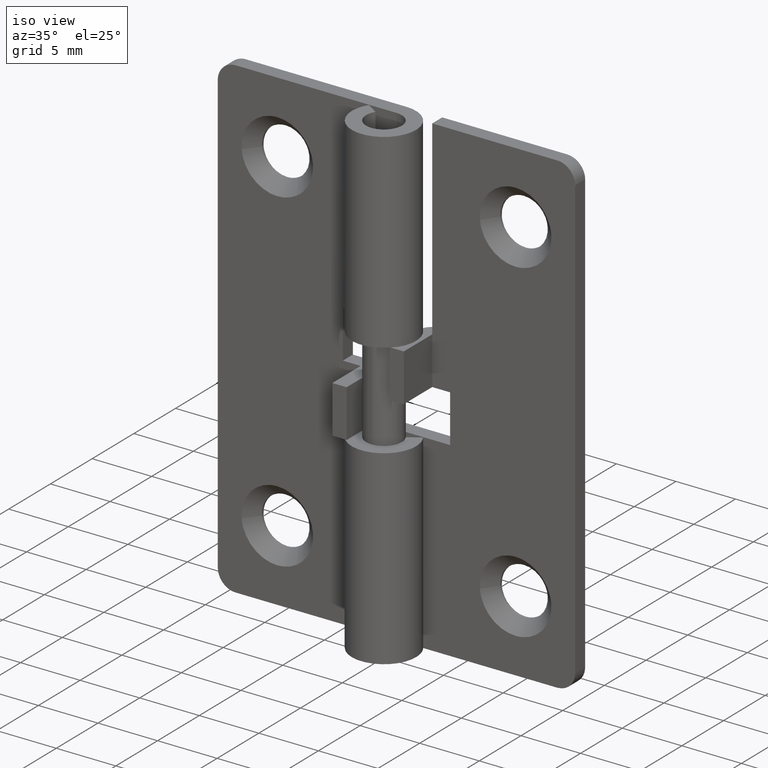
[diagram: clean part render]
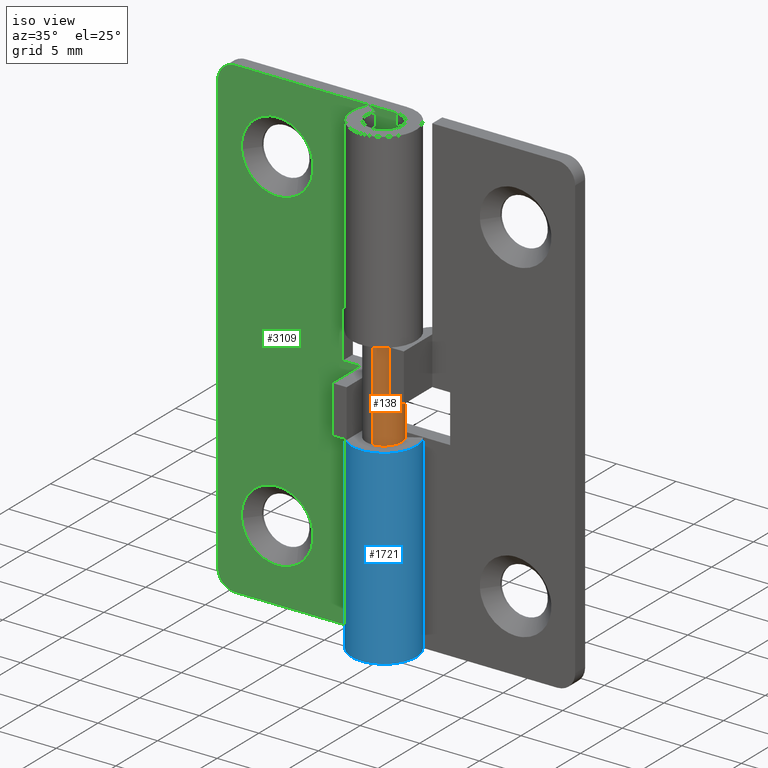
[diagram: same view with three faces highlighted in distinct colors, each labeled with its STEP entity id]
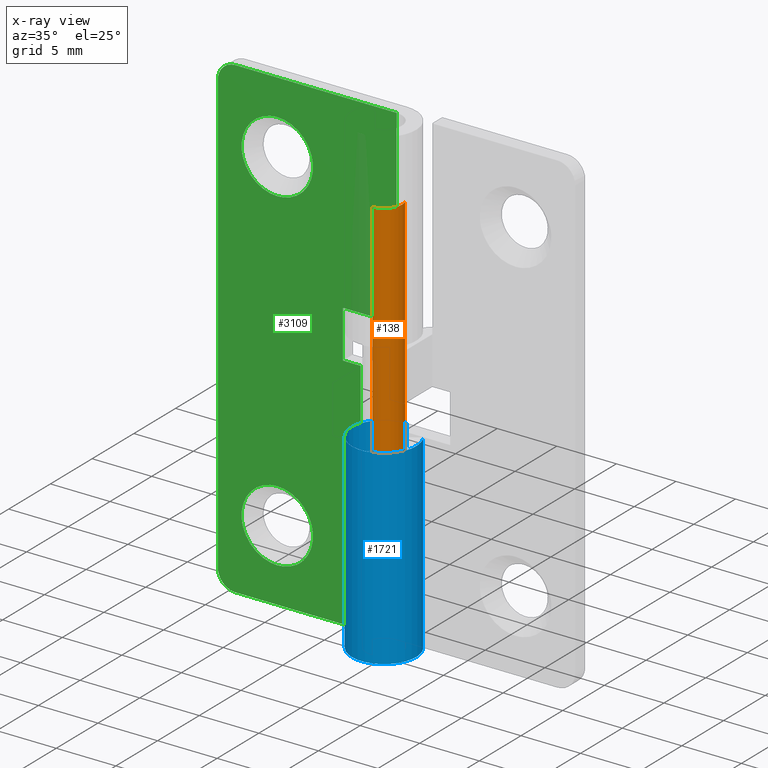
[diagram: x-ray of the same camera — body ghosted, the three highlighted faces saturated]
A machine part, iso view with three faces highlighted in distinct colors.
The next image is the same camera in x-ray (body ghosted, the three faces saturated) — at least one of them is partly hidden behind the body in this view.
Their STEP definitions:

[orange] entity #138 — the highlighted face is a freeform B-spline surface patch.
#44=CARTESIAN_POINT('',(1.404243452472438,0.527437510126623,34.849991800000005));
#45=CARTESIAN_POINT('',(1.483475697968401,0.316490507256684,34.849991800000012));
#46=CARTESIAN_POINT('',(1.497232141676848,0.091574640758477,34.849991800000012));
#47=CARTESIAN_POINT('',(1.588806782435325,-1.405657500918370,34.849991800000005));
#48=CARTESIAN_POINT('',(0.091574640758477,-1.497232141676848,34.849991800000012));
#49=CARTESIAN_POINT('',(1.404243452472438,0.527437510126623,-0.871249794999997));
#50=CARTESIAN_POINT('',(1.483475697968401,0.316490507256684,-0.871249794999997));
#51=CARTESIAN_POINT('',(1.497232141676848,0.091574640758477,-0.871249794999997));
#52=CARTESIAN_POINT('',(1.588806782435325,-1.405657500918370,-0.871249794999997));
#53=CARTESIAN_POINT('',(0.091574640758477,-1.497232141676848,-0.871249794999997));
#61=(BOUNDED_SURFACE()B_SPLINE_SURFACE(2,1,((#44,#49),(#45,#50),(#46,#51),(#47,#52),(#48,#53)),.UNSPECIFIED.,.F.,.F.,.U.)B_SPLINE_SURFACE_WITH_KNOTS((3,2,3),(2,2),(4.398229715025710,4.712388980384690,6.283185307179586),(0.0,35.721241595000002),.UNSPECIFIED.)GEOMETRIC_REPRESENTATION_ITEM()RATIONAL_B_SPLINE_SURFACE(((0.906274169979695,0.906274169979695),(0.941421356237309,0.941421356237309),(1.0,1.0),(0.707106781186548,0.707106781186548),(1.0,1.0)))REPRESENTATION_ITEM('')SURFACE());
#62=CARTESIAN_POINT('',(1.404243452460159,0.527437510159315,33.999991999999999));
#63=VERTEX_POINT('',#62);
#64=CARTESIAN_POINT('',(1.500030000000095,0.0,33.999991999999999));
#65=VERTEX_POINT('',#64);
#66=CARTESIAN_POINT('',(1.404243452460159,0.527437510159315,33.999992000000006));
#67=CARTESIAN_POINT('',(1.500030000000095,0.272416527357814,33.999992000000006));
#68=CARTESIAN_POINT('',(1.500030000000095,0.0,33.999991999999999));
#76=(BOUNDED_CURVE()B_SPLINE_CURVE(2,(#66,#67,#68),.UNSPECIFIED.,.F.,.U.)B_SPLINE_CURVE_WITH_KNOTS((3,3),(0.440284170891555,0.500000000000000),.UNSPECIFIED.)CURVE()GEOMETRIC_REPRESENTATION_ITEM()RATIONAL_B_SPLINE_CURVE((0.893499554626766,0.930038554393254,1.0))REPRESENTATION_ITEM(''));
#77=EDGE_CURVE('',#63,#65,#76,.T.);
#78=ORIENTED_EDGE('',*,*,#77,.T.);
#79=CARTESIAN_POINT('',(0.091574640778391,-1.497232141677437,33.999991999992787));
#80=VERTEX_POINT('',#79);
#81=CARTESIAN_POINT('',(1.500030000000095,0.0,33.999991999999999));
#82=CARTESIAN_POINT('',(1.500030000000096,-1.411087321465840,33.999991999999985));
#83=CARTESIAN_POINT('',(0.091574640778391,-1.497232141677437,33.999991999992787));
#91=(BOUNDED_CURVE()B_SPLINE_CURVE(2,(#81,#82,#83),.UNSPECIFIED.,.F.,.U.)B_SPLINE_CURVE_WITH_KNOTS((3,3),(0.500000000000000,0.739332962232839),.UNSPECIFIED.)CURVE()GEOMETRIC_REPRESENTATION_ITEM()RATIONAL_B_SPLINE_CURVE((1.0,0.719603993293862,0.976072041653635))REPRESENTATION_ITEM(''));
#92=EDGE_CURVE('',#65,#80,#91,.T.);
#93=ORIENTED_EDGE('',*,*,#92,.T.);
#94=CARTESIAN_POINT('',(0.091574640779112,-1.497232141675586,-1.665335E-016));
#95=VERTEX_POINT('',#94);
#96=CARTESIAN_POINT('',(0.091574640778391,-1.497232141677437,33.999991999992787));
#97=CARTESIAN_POINT('',(0.091574640779112,-1.497232141675586,-1.665335E-016));
#98=QUASI_UNIFORM_CURVE('',1,(#96,#97),.UNSPECIFIED.,.F.,.U.);
#99=EDGE_CURVE('',#80,#95,#98,.T.);
#100=ORIENTED_EDGE('',*,*,#99,.T.);
#101=CARTESIAN_POINT('',(1.500030000000095,0.0,0.0));
#102=VERTEX_POINT('',#101);
#103=CARTESIAN_POINT('',(1.500030000000095,0.0,0.0));
#104=CARTESIAN_POINT('',(1.500030000000096,-1.411087321501679,0.0));
#105=CARTESIAN_POINT('',(0.091574640779112,-1.497232141675586,-1.665335E-016));
#113=(BOUNDED_CURVE()B_SPLINE_CURVE(2,(#103,#104,#105),.UNSPECIFIED.,.F.,.U.)B_SPLINE_CURVE_WITH_KNOTS((3,3),(0.500000000000000,0.739332962237213),.UNSPECIFIED.)CURVE()GEOMETRIC_REPRESENTATION_ITEM()RATIONAL_B_SPLINE_CURVE((1.0,0.719603993288737,0.976072041663010))REPRESENTATION_ITEM(''));
#114=EDGE_CURVE('',#102,#95,#113,.T.);
#115=ORIENTED_EDGE('',*,*,#114,.F.);
#116=CARTESIAN_POINT('',(1.404243452460401,0.527437510158670,-1.225041E-016));
#117=VERTEX_POINT('',#116);
#118=CARTESIAN_POINT('',(1.404243452460402,0.527437510158670,-1.225041E-016));
#119=CARTESIAN_POINT('',(1.500030000000095,0.272416527357102,0.0));
#120=CARTESIAN_POINT('',(1.500030000000095,0.0,0.0));
#128=(BOUNDED_CURVE()B_SPLINE_CURVE(2,(#118,#119,#120),.UNSPECIFIED.,.F.,.U.)B_SPLINE_CURVE_WITH_KNOTS((3,3),(0.440284170891700,0.500000000000000),.UNSPECIFIED.)CURVE()GEOMETRIC_REPRESENTATION_ITEM()RATIONAL_B_SPLINE_CURVE((0.893499554626943,0.930038554393424,1.0))REPRESENTATION_ITEM(''));
#129=EDGE_CURVE('',#117,#102,#128,.T.);
#130=ORIENTED_EDGE('',*,*,#129,.F.);
#131=CARTESIAN_POINT('',(1.404243452460159,0.527437510159315,33.999991999999999));
#132=CARTESIAN_POINT('',(1.404243452460401,0.527437510158670,-1.225041E-016));
#133=QUASI_UNIFORM_CURVE('',1,(#131,#132),.UNSPECIFIED.,.F.,.U.);
#134=EDGE_CURVE('',#63,#117,#133,.T.);
#135=ORIENTED_EDGE('',*,*,#134,.F.);
#136=EDGE_LOOP('',(#78,#93,#100,#115,#130,#135));
#137=FACE_OUTER_BOUND('',#136,.T.);
#138=ADVANCED_FACE('',(#137),#61,.T.);

[blue] entity #1721 — the highlighted face is a freeform B-spline surface patch.
#1347=CARTESIAN_POINT('',(0.0,2.699997000000000,16.0));
#1348=VERTEX_POINT('',#1347);
#1349=CARTESIAN_POINT('',(2.277608394786005,1.450000000000114,16.0));
#1350=VERTEX_POINT('',#1349);
#1351=CARTESIAN_POINT('',(0.0,2.699997000000000,16.0));
#1352=CARTESIAN_POINT('',(-2.095109977493359,2.699994879182186,16.000000000000004));
#1353=CARTESIAN_POINT('',(-2.615415091760214,0.670520571077475,16.0));
#1354=CARTESIAN_POINT('',(-3.135720206027071,-1.358953737027236,16.000000000000004));
#1355=CARTESIAN_POINT('',(-1.299038105676602,-2.366961575708954,16.0));
#1356=CARTESIAN_POINT('',(0.537643994673867,-3.374969414390670,16.000000000000004));
#1357=CARTESIAN_POINT('',(1.970202022019861,-1.846157734330594,16.0));
#1358=CARTESIAN_POINT('',(3.402760049365857,-0.317346054270515,16.000000000000004));
#1359=CARTESIAN_POINT('',(2.277608394786005,1.450000000000114,16.0));
#1367=(BOUNDED_CURVE()B_SPLINE_CURVE(2,(#1351,#1352,#1353,#1354,#1355,#1356,#1357,#1358,#1359),.UNSPECIFIED.,.F.,.U.)B_SPLINE_CURVE_WITH_KNOTS((3,2,2,2,3),(0.0,0.250000000000000,0.500000000000000,0.750000000000000,1.0),.UNSPECIFIED.)CURVE()GEOMETRIC_REPRESENTATION_ITEM()RATIONAL_B_SPLINE_CURVE((1.0,0.790045133626190,1.0,0.790045133626190,1.0,0.790045133626190,1.0,0.790045133626190,1.0))REPRESENTATION_ITEM(''));
#1368=EDGE_CURVE('',#1348,#1350,#1367,.T.);
#1404=CARTESIAN_POINT('',(0.004024921167902,2.699997000000000,16.0));
#1405=VERTEX_POINT('',#1404);
#1411=CARTESIAN_POINT('',(0.004024921167902,2.699997000000000,16.0));
#1412=CARTESIAN_POINT('',(0.0,2.699997000000000,16.0));
#1413=QUASI_UNIFORM_CURVE('',1,(#1411,#1412),.UNSPECIFIED.,.F.,.U.);
#1414=EDGE_CURVE('',#1405,#1348,#1413,.T.);
#1570=CARTESIAN_POINT('',(0.004024921167902,2.699997000000110,-0.000038000000036));
#1571=VERTEX_POINT('',#1570);
#1606=CARTESIAN_POINT('',(2.277608394786005,1.450000000000114,-0.000038000000036));
#1607=VERTEX_POINT('',#1606);
#1613=CARTESIAN_POINT('',(0.004024921167904,2.699997000000110,-0.000038000000036));
#1614=CARTESIAN_POINT('',(-2.091888897382458,2.703121406395519,-0.000038000000036));
#1615=CARTESIAN_POINT('',(-2.614663787384020,0.673448794595887,-0.000038000000036));
#1616=CARTESIAN_POINT('',(-3.137438677385583,-1.356223817203747,-0.000038000000036));
#1617=CARTESIAN_POINT('',(-1.300801972676840,-2.365991172401123,-0.000038000000036));
#1618=CARTESIAN_POINT('',(0.535834732031903,-3.375758527598499,-0.000038000000036));
#1619=CARTESIAN_POINT('',(1.969513862233385,-1.846893377125636,-0.000038000000036));
#1620=CARTESIAN_POINT('',(3.403192992434866,-0.318028226652773,-0.000038000000036));
#1621=CARTESIAN_POINT('',(2.277608394786006,1.450000000000109,-0.000038000000036));
#1629=(BOUNDED_CURVE()B_SPLINE_CURVE(2,(#1613,#1614,#1615,#1616,#1617,#1618,#1619,#1620,#1621),.UNSPECIFIED.,.F.,.U.)B_SPLINE_CURVE_WITH_KNOTS((3,2,2,2,3),(0.0,0.250000000000000,0.500000000000000,0.750000000000000,1.0),.UNSPECIFIED.)CURVE()GEOMETRIC_REPRESENTATION_ITEM()RATIONAL_B_SPLINE_CURVE((1.0,0.789930885025042,1.0,0.789930885025042,1.0,0.789930885025042,1.0,0.789930885025042,1.0))REPRESENTATION_ITEM(''));
#1630=EDGE_CURVE('',#1571,#1607,#1629,.T.);
#1678=CARTESIAN_POINT('',(2.277608394786005,1.450000000000114,-0.000038000000036));
#1679=CARTESIAN_POINT('',(2.277608394786005,1.450000000000114,16.0));
#1680=QUASI_UNIFORM_CURVE('',1,(#1678,#1679),.UNSPECIFIED.,.F.,.U.);
#1681=EDGE_CURVE('',#1607,#1350,#1680,.T.);
#1688=CARTESIAN_POINT('',(2.227417977353597,1.525978097536792,-0.400038950000037));
#1689=CARTESIAN_POINT('',(2.227417977353597,1.525978097536792,16.410000973750002));
#1690=CARTESIAN_POINT('',(4.145835370333900,-1.274270081706238,-0.400038950000036));
#1691=CARTESIAN_POINT('',(4.145835370333900,-1.274270081706238,16.410000973749995));
#1692=CARTESIAN_POINT('',(0.985807355287602,-2.513599780844369,-0.400038950000037));
#1693=CARTESIAN_POINT('',(0.985807355287602,-2.513599780844369,16.410000973750002));
#1694=CARTESIAN_POINT('',(-2.174220659758694,-3.752929479982500,-0.400038950000036));
#1695=CARTESIAN_POINT('',(-2.174220659758694,-3.752929479982500,16.410000973749995));
#1696=CARTESIAN_POINT('',(-2.670934785257364,-0.395104255737893,-0.400038950000037));
#1697=CARTESIAN_POINT('',(-2.670934785257364,-0.395104255737893,16.410000973750002));
#1698=CARTESIAN_POINT('',(-3.167648910756034,2.962720968506714,-0.400038950000036));
#1699=CARTESIAN_POINT('',(-3.167648910756034,2.962720968506714,16.410000973749995));
#1700=CARTESIAN_POINT('',(0.215851836767097,2.691358018652344,-0.400038950000037));
#1701=CARTESIAN_POINT('',(0.215851836767097,2.691358018652344,16.410000973750002));
#1709=(BOUNDED_SURFACE()B_SPLINE_SURFACE(1,2,((#1688,#1690,#1692,#1694,#1696,#1698,#1700),(#1689,#1691,#1693,#1695,#1697,#1699,#1701)),.UNSPECIFIED.,.F.,.F.,.U.)B_SPLINE_SURFACE_WITH_KNOTS((2,2),(3,2,2,3),(0.0,16.810039923750040),(0.0,5.209301600829763,10.418603201659529,15.627904802489290),.UNSPECIFIED.)GEOMETRIC_REPRESENTATION_ITEM()RATIONAL_B_SPLINE_SURFACE(((1.0,0.622514636637620,1.0,0.622514636637620,1.0,0.622514636637620,1.0),(1.0,0.622514636637620,1.0,0.622514636637620,1.0,0.622514636637620,1.0)))REPRESENTATION_ITEM('')SURFACE());
#1710=ORIENTED_EDGE('',*,*,#1414,.F.);
#1711=CARTESIAN_POINT('',(0.004024921167902,2.699997000000110,-0.000038000000036));
#1712=CARTESIAN_POINT('',(0.004024921167902,2.699997000000000,16.0));
#1713=QUASI_UNIFORM_CURVE('',1,(#1711,#1712),.UNSPECIFIED.,.F.,.U.);
#1714=EDGE_CURVE('',#1571,#1405,#1713,.T.);
#1715=ORIENTED_EDGE('',*,*,#1714,.F.);
#1716=ORIENTED_EDGE('',*,*,#1630,.T.);
#1717=ORIENTED_EDGE('',*,*,#1681,.T.);
#1718=ORIENTED_EDGE('',*,*,#1368,.F.);
#1719=EDGE_LOOP('',(#1710,#1715,#1716,#1717,#1718));
#1720=FACE_OUTER_BOUND('',#1719,.T.);
#1721=ADVANCED_FACE('',(#1720),#1709,.T.);

[green] entity #3109 — the highlighted face is a freeform B-spline surface patch.
#1886=CARTESIAN_POINT('',(-8.386439619589588,1.499999999995708,31.470864853447509));
#1887=VERTEX_POINT('',#1886);
#1893=CARTESIAN_POINT('',(-9.999991999999999,1.500000000000030,36.999985000000009));
#1894=VERTEX_POINT('',#1893);
#1895=CARTESIAN_POINT('',(-9.999991999999999,1.500000000000030,36.999985000000009));
#1896=CARTESIAN_POINT('',(-6.999991999999999,1.500000000000031,36.999985000000009));
#1897=CARTESIAN_POINT('',(-6.999991999999999,1.500000000000030,33.999985000000002));
#1898=CARTESIAN_POINT('',(-6.999991999999998,1.500000000000030,32.355404032063070));
#1899=CARTESIAN_POINT('',(-8.386439619589588,1.499999999995709,31.470864853447512));
#1907=(BOUNDED_CURVE()B_SPLINE_CURVE(2,(#1895,#1896,#1897,#1898,#1899),.UNSPECIFIED.,.F.,.U.)B_SPLINE_CURVE_WITH_KNOTS((3,2,3),(0.0,0.250000000000000,0.407950112619180),.UNSPECIFIED.)CURVE()GEOMETRIC_REPRESENTATION_ITEM()RATIONAL_B_SPLINE_CURVE((1.0,0.707106781186548,1.0,0.814949932412084,0.863729296949754))REPRESENTATION_ITEM(''));
#1908=EDGE_CURVE('',#1894,#1887,#1907,.T.);
#1910=CARTESIAN_POINT('',(-12.990744001211580,1.499999999969424,33.764607712581572));
#1911=VERTEX_POINT('',#1910);
#1912=CARTESIAN_POINT('',(-12.990744001211585,1.499999999969424,33.764607712581579));
#1913=CARTESIAN_POINT('',(-12.999992000000001,1.500000000000030,33.882114678743413));
#1914=CARTESIAN_POINT('',(-12.999992000000001,1.500000000000030,33.999985000000002));
#1915=CARTESIAN_POINT('',(-12.999991999999999,1.500000000000031,36.999985000000009));
#1916=CARTESIAN_POINT('',(-9.999991999999999,1.500000000000030,36.999985000000009));
#1924=(BOUNDED_CURVE()B_SPLINE_CURVE(2,(#1912,#1913,#1914,#1915,#1916),.UNSPECIFIED.,.F.,.U.)B_SPLINE_CURVE_WITH_KNOTS((3,2,3),(0.736331300606114,0.750000000000000,1.0),.UNSPECIFIED.)CURVE()GEOMETRIC_REPRESENTATION_ITEM()RATIONAL_B_SPLINE_CURVE((0.969723356116192,0.983986122550125,1.0,0.707106781186548,1.0))REPRESENTATION_ITEM(''));
#1925=EDGE_CURVE('',#1911,#1894,#1924,.T.);
#2029=CARTESIAN_POINT('',(-9.999991999999999,1.500000000000030,30.999985000000009));
#2030=VERTEX_POINT('',#2029);
#2031=CARTESIAN_POINT('',(-9.999991999999999,1.500000000000030,30.999985000000009));
#2032=CARTESIAN_POINT('',(-12.773163474542120,1.500000000000030,30.999985000000002));
#2033=CARTESIAN_POINT('',(-12.990744001211583,1.499999999969424,33.764607712581572));
#2041=(BOUNDED_CURVE()B_SPLINE_CURVE(2,(#2031,#2032,#2033),.UNSPECIFIED.,.F.,.U.)B_SPLINE_CURVE_WITH_KNOTS((3,3),(0.500000000000000,0.736331300606114),.UNSPECIFIED.)CURVE()GEOMETRIC_REPRESENTATION_ITEM()RATIONAL_B_SPLINE_CURVE((1.0,0.723120658636423,0.969723356116193))REPRESENTATION_ITEM(''));
#2042=EDGE_CURVE('',#2030,#1911,#2041,.T.);
#2044=CARTESIAN_POINT('',(-8.386439619589588,1.499999999995708,31.470864853447502));
#2045=CARTESIAN_POINT('',(-9.124507833772762,1.500000000000030,30.999985000000006));
#2046=CARTESIAN_POINT('',(-9.999991999999999,1.500000000000030,30.999985000000009));
#2054=(BOUNDED_CURVE()B_SPLINE_CURVE(2,(#2044,#2045,#2046),.UNSPECIFIED.,.F.,.U.)B_SPLINE_CURVE_WITH_KNOTS((3,3),(0.407950112619180,0.500000000000000),.UNSPECIFIED.)CURVE()GEOMETRIC_REPRESENTATION_ITEM()RATIONAL_B_SPLINE_CURVE((0.863729296949754,0.892156848774463,1.0))REPRESENTATION_ITEM(''));
#2055=EDGE_CURVE('',#1887,#2030,#2054,.T.);
#2230=CARTESIAN_POINT('',(-8.386439619589588,1.499999999995708,3.470864853447501));
#2231=VERTEX_POINT('',#2230);
#2237=CARTESIAN_POINT('',(-9.999991999999999,1.500000000000030,8.999985000000001));
#2238=VERTEX_POINT('',#2237);
#2239=CARTESIAN_POINT('',(-9.999991999999999,1.500000000000030,8.999985000000001));
#2240=CARTESIAN_POINT('',(-6.999991999999999,1.500000000000031,8.999985000000001));
#2241=CARTESIAN_POINT('',(-6.999991999999999,1.500000000000030,5.999985000000001));
#2242=CARTESIAN_POINT('',(-6.999991999999999,1.500000000000030,4.355404032063055));
#2243=CARTESIAN_POINT('',(-8.386439619589588,1.499999999995708,3.470864853447502));
#2251=(BOUNDED_CURVE()B_SPLINE_CURVE(2,(#2239,#2240,#2241,#2242,#2243),.UNSPECIFIED.,.F.,.U.)B_SPLINE_CURVE_WITH_KNOTS((3,2,3),(0.0,0.250000000000000,0.407950112619180),.UNSPECIFIED.)CURVE()GEOMETRIC_REPRESENTATION_ITEM()RATIONAL_B_SPLINE_CURVE((1.0,0.707106781186548,1.0,0.814949932412084,0.863729296949754))REPRESENTATION_ITEM(''));
#2252=EDGE_CURVE('',#2238,#2231,#2251,.T.);
#2254=CARTESIAN_POINT('',(-12.990744001211580,1.499999999969424,5.764607712581565));
#2255=VERTEX_POINT('',#2254);
#2256=CARTESIAN_POINT('',(-12.990744001211576,1.499999999969424,5.764607712581565));
#2257=CARTESIAN_POINT('',(-12.999991999999995,1.500000000000030,5.882114678743412));
#2258=CARTESIAN_POINT('',(-12.999992000000001,1.500000000000030,5.999985000000001));
#2259=CARTESIAN_POINT('',(-12.999991999999999,1.500000000000031,8.999985000000001));
#2260=CARTESIAN_POINT('',(-9.999991999999999,1.500000000000030,8.999985000000001));
#2268=(BOUNDED_CURVE()B_SPLINE_CURVE(2,(#2256,#2257,#2258,#2259,#2260),.UNSPECIFIED.,.F.,.U.)B_SPLINE_CURVE_WITH_KNOTS((3,2,3),(0.736331300606114,0.750000000000000,1.0),.UNSPECIFIED.)CURVE()GEOMETRIC_REPRESENTATION_ITEM()RATIONAL_B_SPLINE_CURVE((0.969723356116193,0.983986122550125,1.0,0.707106781186548,1.0))REPRESENTATION_ITEM(''));
#2269=EDGE_CURVE('',#2255,#2238,#2268,.T.);
#2373=CARTESIAN_POINT('',(-9.999991999999999,1.500000000000030,2.999985000000000));
#2374=VERTEX_POINT('',#2373);
#2375=CARTESIAN_POINT('',(-9.999991999999999,1.500000000000030,2.999985000000000));
#2376=CARTESIAN_POINT('',(-12.773163474542120,1.500000000000030,2.999984999999999));
#2377=CARTESIAN_POINT('',(-12.990744001211583,1.499999999969424,5.764607712581565));
#2385=(BOUNDED_CURVE()B_SPLINE_CURVE(2,(#2375,#2376,#2377),.UNSPECIFIED.,.F.,.U.)B_SPLINE_CURVE_WITH_KNOTS((3,3),(0.500000000000000,0.736331300606114),.UNSPECIFIED.)CURVE()GEOMETRIC_REPRESENTATION_ITEM()RATIONAL_B_SPLINE_CURVE((1.0,0.723120658636423,0.969723356116193))REPRESENTATION_ITEM(''));
#2386=EDGE_CURVE('',#2374,#2255,#2385,.T.);
#2388=CARTESIAN_POINT('',(-8.386439619589588,1.499999999995708,3.470864853447502));
#2389=CARTESIAN_POINT('',(-9.124507833772762,1.500000000000030,2.999985000000000));
#2390=CARTESIAN_POINT('',(-9.999991999999999,1.500000000000030,2.999985000000000));
#2398=(BOUNDED_CURVE()B_SPLINE_CURVE(2,(#2388,#2389,#2390),.UNSPECIFIED.,.F.,.U.)B_SPLINE_CURVE_WITH_KNOTS((3,3),(0.407950112619180,0.500000000000000),.UNSPECIFIED.)CURVE()GEOMETRIC_REPRESENTATION_ITEM()RATIONAL_B_SPLINE_CURVE((0.863729296949754,0.892156848774464,1.0))REPRESENTATION_ITEM(''));
#2399=EDGE_CURVE('',#2231,#2374,#2398,.T.);
#2635=CARTESIAN_POINT('',(-3.0,1.500000000000055,16.0));
#2636=VERTEX_POINT('',#2635);
#2678=CARTESIAN_POINT('',(-3.0,1.500000000000055,19.999962000000000));
#2679=VERTEX_POINT('',#2678);
#2685=CARTESIAN_POINT('',(-3.0,1.500000000000055,19.999962000000000));
#2686=CARTESIAN_POINT('',(-3.0,1.500000000000055,16.0));
#2687=QUASI_UNIFORM_CURVE('',1,(#2685,#2686),.UNSPECIFIED.,.F.,.U.);
#2688=EDGE_CURVE('',#2679,#2636,#2687,.T.);
#2709=CARTESIAN_POINT('',(-4.500000000000000,1.500000000000055,19.999962000000000));
#2710=VERTEX_POINT('',#2709);
#2716=CARTESIAN_POINT('',(-4.500000000000000,1.500000000000055,19.999962000000000));
#2717=CARTESIAN_POINT('',(-3.0,1.500000000000055,19.999962000000000));
#2718=QUASI_UNIFORM_CURVE('',1,(#2716,#2717),.UNSPECIFIED.,.F.,.U.);
#2719=EDGE_CURVE('',#2710,#2679,#2718,.T.);
#2739=CARTESIAN_POINT('',(-3.0,1.500000000000000,0.0));
#2740=VERTEX_POINT('',#2739);
#2741=CARTESIAN_POINT('',(-3.0,1.500000000000055,16.0));
#2742=CARTESIAN_POINT('',(-3.0,1.500000000000000,0.0));
#2743=QUASI_UNIFORM_CURVE('',1,(#2741,#2742),.UNSPECIFIED.,.F.,.U.);
#2744=EDGE_CURVE('',#2636,#2740,#2743,.T.);
#2789=CARTESIAN_POINT('',(9.184352E-017,1.500000000000000,23.999962000000000));
#2790=VERTEX_POINT('',#2789);
#2810=CARTESIAN_POINT('',(-4.500000000000000,1.500000000000055,23.999962000000000));
#2811=VERTEX_POINT('',#2810);
#2812=CARTESIAN_POINT('',(9.184352E-017,1.500000000000000,23.999962000000000));
#2813=CARTESIAN_POINT('',(-4.500000000000000,1.500000000000055,23.999962000000000));
#2814=QUASI_UNIFORM_CURVE('',1,(#2812,#2813),.UNSPECIFIED.,.F.,.U.);
#2815=EDGE_CURVE('',#2790,#2811,#2814,.T.);
#2844=CARTESIAN_POINT('',(-4.500000000000000,1.500000000000055,23.999962000000000));
#2845=CARTESIAN_POINT('',(-4.500000000000000,1.500000000000055,19.999962000000000));
#2846=QUASI_UNIFORM_CURVE('',1,(#2844,#2845),.UNSPECIFIED.,.F.,.U.);
#2847=EDGE_CURVE('',#2811,#2710,#2846,.T.);
#2873=CARTESIAN_POINT('',(-13.499992000000001,1.500000000000000,40.0));
#2874=VERTEX_POINT('',#2873);
#2875=CARTESIAN_POINT('',(-14.999992000000001,1.500000000000000,38.500000000000000));
#2876=VERTEX_POINT('',#2875);
#2877=CARTESIAN_POINT('',(-13.499992000000001,1.500000000000000,40.0));
#2878=CARTESIAN_POINT('',(-14.999991999999995,1.500000000000000,39.999999999999993));
#2879=CARTESIAN_POINT('',(-14.999992000000001,1.500000000000000,38.500000000000000));
#2887=(BOUNDED_CURVE()B_SPLINE_CURVE(2,(#2877,#2878,#2879),.UNSPECIFIED.,.F.,.U.)CURVE()GEOMETRIC_REPRESENTATION_ITEM()QUASI_UNIFORM_CURVE()RATIONAL_B_SPLINE_CURVE((1.0,0.707106781186548,1.0))REPRESENTATION_ITEM(''));
#2888=EDGE_CURVE('',#2874,#2876,#2887,.T.);
#2934=CARTESIAN_POINT('',(-14.999992000000001,1.500000000000000,1.499999999999946));
#2935=VERTEX_POINT('',#2934);
#2936=CARTESIAN_POINT('',(-13.499992000000001,1.500000000000000,0.0));
#2937=VERTEX_POINT('',#2936);
#2938=CARTESIAN_POINT('',(-14.999992000000001,1.500000000000000,1.500000000000000));
#2939=CARTESIAN_POINT('',(-14.999991999999995,1.500000000000000,0.0));
#2940=CARTESIAN_POINT('',(-13.499992000000001,1.500000000000000,0.0));
#2948=(BOUNDED_CURVE()B_SPLINE_CURVE(2,(#2938,#2939,#2940),.UNSPECIFIED.,.F.,.U.)CURVE()GEOMETRIC_REPRESENTATION_ITEM()QUASI_UNIFORM_CURVE()RATIONAL_B_SPLINE_CURVE((1.0,0.707106781186548,1.0))REPRESENTATION_ITEM(''));
#2949=EDGE_CURVE('',#2935,#2937,#2948,.T.);
#2987=CARTESIAN_POINT('',(-3.0,1.500000000000000,0.0));
#2988=CARTESIAN_POINT('',(-13.499992000000001,1.500000000000000,0.0));
#2989=QUASI_UNIFORM_CURVE('',1,(#2987,#2988),.UNSPECIFIED.,.F.,.U.);
#2990=EDGE_CURVE('',#2740,#2937,#2989,.T.);
#3014=CARTESIAN_POINT('',(9.184548E-017,1.500000000000000,40.0));
#3015=VERTEX_POINT('',#3014);
#3016=CARTESIAN_POINT('',(9.184548E-017,1.500000000000000,40.0));
#3017=CARTESIAN_POINT('',(-13.499992000000001,1.500000000000000,40.0));
#3018=QUASI_UNIFORM_CURVE('',1,(#3016,#3017),.UNSPECIFIED.,.F.,.U.);
#3019=EDGE_CURVE('',#3015,#2874,#3018,.T.);
#3071=CARTESIAN_POINT('',(-15.749241993754680,1.500000000000000,41.997999922472239));
#3072=CARTESIAN_POINT('',(-15.749241993754680,1.500000000000000,-1.998000995355844));
#3073=CARTESIAN_POINT('',(0.749249993754681,1.500000000000000,41.997999922472239));
#3074=CARTESIAN_POINT('',(0.749249993754681,1.500000000000000,-1.998000995355844));
#3075=B_SPLINE_SURFACE_WITH_KNOTS('',1,1,((#3071,#3073),(#3072,#3074)),.UNSPECIFIED.,.F.,.F.,.U.,(2,2),(2,2),(0.0,43.996000917828077),(0.0,16.498491987509372),.UNSPECIFIED.);
#3076=ORIENTED_EDGE('',*,*,#2815,.F.);
#3077=CARTESIAN_POINT('',(9.184548E-017,1.500000000000000,40.0));
#3078=CARTESIAN_POINT('',(9.184352E-017,1.500000000000000,23.999962000000000));
#3079=QUASI_UNIFORM_CURVE('',1,(#3077,#3078),.UNSPECIFIED.,.F.,.U.);
#3080=EDGE_CURVE('',#3015,#2790,#3079,.T.);
#3081=ORIENTED_EDGE('',*,*,#3080,.F.);
#3082=ORIENTED_EDGE('',*,*,#3019,.T.);
#3083=ORIENTED_EDGE('',*,*,#2888,.T.);
#3084=CARTESIAN_POINT('',(-14.999992000000001,1.500000000000000,38.500000000000000));
#3085=CARTESIAN_POINT('',(-14.999992000000001,1.500000000000000,1.499999999999946));
#3086=QUASI_UNIFORM_CURVE('',1,(#3084,#3085),.UNSPECIFIED.,.F.,.U.);
#3087=EDGE_CURVE('',#2876,#2935,#3086,.T.);
#3088=ORIENTED_EDGE('',*,*,#3087,.T.);
#3089=ORIENTED_EDGE('',*,*,#2949,.T.);
#3090=ORIENTED_EDGE('',*,*,#2990,.F.);
#3091=ORIENTED_EDGE('',*,*,#2744,.F.);
#3092=ORIENTED_EDGE('',*,*,#2688,.F.);
#3093=ORIENTED_EDGE('',*,*,#2719,.F.);
#3094=ORIENTED_EDGE('',*,*,#2847,.F.);
#3095=EDGE_LOOP('',(#3076,#3081,#3082,#3083,#3088,#3089,#3090,#3091,#3092,#3093,#3094));
#3096=FACE_OUTER_BOUND('',#3095,.T.);
#3097=ORIENTED_EDGE('',*,*,#2386,.T.);
#3098=ORIENTED_EDGE('',*,*,#2269,.T.);
#3099=ORIENTED_EDGE('',*,*,#2252,.T.);
#3100=ORIENTED_EDGE('',*,*,#2399,.T.);
#3101=EDGE_LOOP('',(#3097,#3098,#3099,#3100));
#3102=FACE_BOUND('',#3101,.T.);
#3103=ORIENTED_EDGE('',*,*,#2042,.T.);
#3104=ORIENTED_EDGE('',*,*,#1925,.T.);
#3105=ORIENTED_EDGE('',*,*,#1908,.T.);
#3106=ORIENTED_EDGE('',*,*,#2055,.T.);
#3107=EDGE_LOOP('',(#3103,#3104,#3105,#3106));
#3108=FACE_BOUND('',#3107,.T.);
#3109=ADVANCED_FACE('',(#3096,#3102,#3108),#3075,.T.);